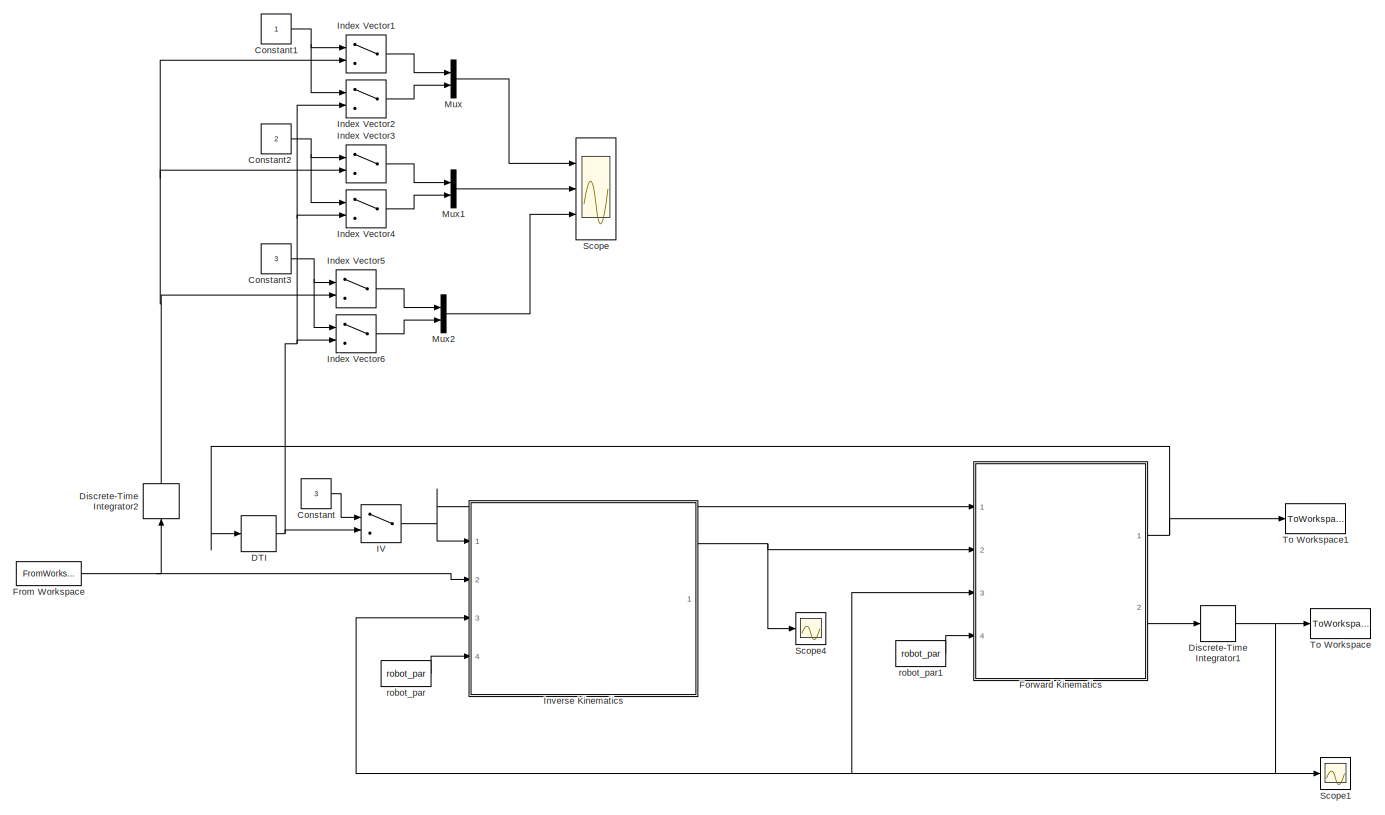
[diagram: root canvas - part 1/1, most of the canvas]
MODEL slx_a0eda91925b4
KIND model
CONFIG AbsTol = auto
CONFIG EnableMultiTasking = off
CONFIG FixedStep = Ts
CONFIG MaxStep = auto
CONFIG MinStep = auto
CONFIG RelTol = 1e-3
CONFIG SampleTimeConstraint = Unconstrained
CONFIG Solver = FixedStepDiscrete
CONFIG SolverName = FixedStepDiscrete
CONFIG StartTime = 0.0
CONFIG StopTime = timesim(end)
BLOCK [Constant] Constant
  Value = 3
BLOCK [Constant] Constant1
BLOCK [Constant] Constant2
  Value = 2
BLOCK [Constant] Constant3
  Value = 3
BLOCK [DiscreteIntegrator] DTI
  ICPrevOutput = DiscIntNeverNeededParam
  ICPrevScaledInput = DiscIntNeverNeededParam
  InitialConditionSetting = State (most efficient)
  Ports = [1, 1]
  SampleTime = Ts
BLOCK [DiscreteIntegrator] Discrete-Time Integrator1
  ICPrevOutput = DiscIntNeverNeededParam
  ICPrevScaledInput = DiscIntNeverNeededParam
  InitialConditionSetting = State (most efficient)
  Ports = [1, 1]
  SampleTime = Ts
BLOCK [DiscreteIntegrator] Discrete-Time Integrator2
  ICPrevOutput = DiscIntNeverNeededParam
  ICPrevScaledInput = DiscIntNeverNeededParam
  InitialConditionSetting = State (most efficient)
  Ports = [1, 1]
  SampleTime = Ts
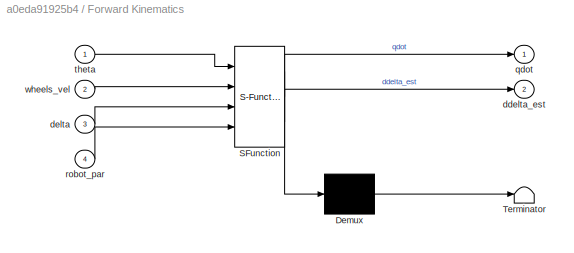
BLOCK [SubSystem] Forward Kinematics
  ErrorFcn = Stateflow.Translate.translate
  PermitHierarchicalResolution = ExplicitOnly
  Ports = [4, 2]
  RequestExecContextInheritance = off
  SFBlockType = MATLAB Function
  TreatAsAtomicUnit = on
  Variant = off
BLOCK [Demux] Forward Kinematics/ Demux 
  Outputs = 1
  Ports = [1, 1]
BLOCK [S-Function] Forward Kinematics/ SFunction 
  EnableBusSupport = on
  FunctionName = sf_sfun
  PortCounts = [4 3]
  Ports = [4, 3]
  SFcnIsStateOwnerBlock = off
  SFunctionDeploymentMode = off
  Tag = Stateflow S-Function ropod_KinModTest 1
BLOCK [Terminator] Forward Kinematics/ Terminator 
BLOCK [Outport] Forward Kinematics/ddelta_est
  IconDisplay = Port number
  Port = 2
BLOCK [Inport] Forward Kinematics/delta
  IconDisplay = Port number
  Port = 3
BLOCK [Outport] Forward Kinematics/qdot
  IconDisplay = Port number
BLOCK [Inport] Forward Kinematics/robot_par
  IconDisplay = Port number
  Port = 4
BLOCK [Inport] Forward Kinematics/theta
  IconDisplay = Port number
BLOCK [Inport] Forward Kinematics/wheels_vel
  IconDisplay = Port number
  Port = 2
BLOCK [FromWorkspace] From Workspace
  SampleTime = 0
  VariableName = qrefdot
  ZeroCross = on
BLOCK [MultiPortSwitch] IV
  InputSameDT = off
  Inputs = 1
  Ports = [2, 1]
  SaturateOnIntegerOverflow = off
BLOCK [MultiPortSwitch] Index Vector1
  InputSameDT = off
  Inputs = 1
  Ports = [2, 1]
  SaturateOnIntegerOverflow = off
BLOCK [MultiPortSwitch] Index Vector2
  InputSameDT = off
  Inputs = 1
  Ports = [2, 1]
  SaturateOnIntegerOverflow = off
BLOCK [MultiPortSwitch] Index Vector3
  InputSameDT = off
  Inputs = 1
  Ports = [2, 1]
  SaturateOnIntegerOverflow = off
BLOCK [MultiPortSwitch] Index Vector4
  InputSameDT = off
  Inputs = 1
  Ports = [2, 1]
  SaturateOnIntegerOverflow = off
BLOCK [MultiPortSwitch] Index Vector5
  InputSameDT = off
  Inputs = 1
  Ports = [2, 1]
  SaturateOnIntegerOverflow = off
BLOCK [MultiPortSwitch] Index Vector6
  InputSameDT = off
  Inputs = 1
  Ports = [2, 1]
  SaturateOnIntegerOverflow = off
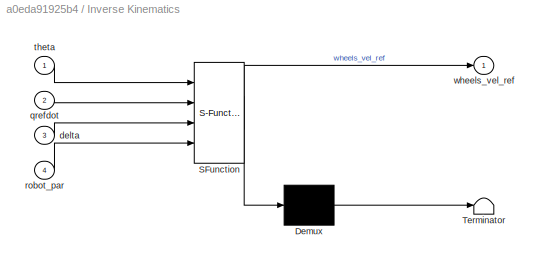
BLOCK [SubSystem] Inverse Kinematics
  ErrorFcn = Stateflow.Translate.translate
  PermitHierarchicalResolution = ExplicitOnly
  Ports = [4, 1]
  RequestExecContextInheritance = off
  SFBlockType = MATLAB Function
  TreatAsAtomicUnit = on
  Variant = off
BLOCK [Demux] Inverse Kinematics/ Demux 
  Outputs = 1
  Ports = [1, 1]
BLOCK [S-Function] Inverse Kinematics/ SFunction 
  EnableBusSupport = on
  FunctionName = sf_sfun
  PortCounts = [4 2]
  Ports = [4, 2]
  SFcnIsStateOwnerBlock = off
  SFunctionDeploymentMode = off
  Tag = Stateflow S-Function ropod_KinModTest 2
BLOCK [Terminator] Inverse Kinematics/ Terminator 
BLOCK [Inport] Inverse Kinematics/delta
  IconDisplay = Port number
  Port = 3
BLOCK [Inport] Inverse Kinematics/qrefdot
  IconDisplay = Port number
  Port = 2
BLOCK [Inport] Inverse Kinematics/robot_par
  IconDisplay = Port number
  Port = 4
BLOCK [Inport] Inverse Kinematics/theta
  IconDisplay = Port number
BLOCK [Outport] Inverse Kinematics/wheels_vel_ref
  IconDisplay = Port number
BLOCK [Mux] Mux
  DisplayOption = bar
  Inputs = 2
  Ports = [2, 1]
BLOCK [Mux] Mux1
  DisplayOption = bar
  Inputs = 2
  Ports = [2, 1]
BLOCK [Mux] Mux2
  DisplayOption = bar
  Inputs = 2
  Ports = [2, 1]
BLOCK [Scope] Scope
  NumInputPorts = 3
  Ports = [3]
  ScopeSpecificationString = Simulink.scopes.TimeScopeBlockCfg('CurrentConfiguration', extmgr.ConfigurationSet(extmgr.Configuration('Core','General UI',true),extmgr.Configuration('Core','Source UI',true),extmgr.Configuration('Sources','WiredSimulink',true),extmgr.Configuration('Visuals','Time Domain',true,'SerializedDisplays',{struct('MinYLimReal','-0.0000000000000000006','MaxYLimReal','0.0000000000000000054','YLabelReal','',...<+2827ch>
BLOCK [Scope] Scope1
  NumInputPorts = 1
  Ports = [1]
  ScopeSpecificationString = Simulink.scopes.TimeScopeBlockCfg('CurrentConfiguration', extmgr.ConfigurationSet(extmgr.Configuration('Core','General UI',true),extmgr.Configuration('Core','Source UI',true),extmgr.Configuration('Sources','WiredSimulink',true,'DataLoggingVariableName','ScopeData1'),extmgr.Configuration('Visuals','Time Domain',true,'SerializedDisplays',{struct('MinYLimReal','-3.92648','MaxYLimReal','3.92661','YLab...<+1432ch>
BLOCK [Scope] Scope4
  NumInputPorts = 1
  Ports = [1]
  ScopeSpecificationString = Simulink.scopes.TimeScopeBlockCfg('CurrentConfiguration', extmgr.ConfigurationSet(extmgr.Configuration('Core','General UI',true),extmgr.Configuration('Core','Source UI',true),extmgr.Configuration('Sources','WiredSimulink',true,'DataLoggingVariableName','ScopeData4'),extmgr.Configuration('Visuals','Time Domain',true,'SerializedDisplays',{struct('MinYLimReal','-37.30877','MaxYLimReal','51.06054','YL...<+1594ch>
BLOCK [ToWorkspace] To Workspace
  FixptAsFi = on
  MaxDataPoints = inf
  Ports = [1]
  SampleTime = -1
  Save2DSignal = 3-D array (concatenate along third dimension)
  SaveFormat = Timeseries
  VariableName = delta_est
BLOCK [ToWorkspace] To Workspace1
  FixptAsFi = on
  MaxDataPoints = inf
  Ports = [1]
  SampleTime = -1
  Save2DSignal = 3-D array (concatenate along third dimension)
  SaveFormat = Timeseries
  VariableName = qdot_est
BLOCK [Constant] robot_par
  Value = robot_par
BLOCK [Constant] robot_par1
  Value = robot_par
NET Constant1:1 -> Index Vector1:1, Index Vector2:1
NET Constant2:1 -> Index Vector3:1, Index Vector4:1
NET Constant3:1 -> Index Vector5:1, Index Vector6:1
LINE Constant:1 -> IV:1
NET DTI:1 -> IV:2, Index Vector2:2, Index Vector4:2, Index Vector6:2
NET Discrete-Time Integrator1:1 -> Forward Kinematics:3, Inverse Kinematics:3, Scope1:1, To Workspace:1
NET Discrete-Time Integrator2:1 -> Index Vector1:2, Index Vector3:2, Index Vector5:2
NET Forward Kinematics:1 -> DTI:1, To Workspace1:1
LINE Forward Kinematics:2 -> Discrete-Time Integrator1:1
NET From Workspace:1 -> Discrete-Time Integrator2:1, Inverse Kinematics:2
NET IV:1 -> Forward Kinematics:1, Inverse Kinematics:1
LINE Index Vector1:1 -> Mux:1
LINE Index Vector2:1 -> Mux:2
LINE Index Vector3:1 -> Mux1:1
LINE Index Vector4:1 -> Mux1:2
LINE Index Vector5:1 -> Mux2:1
LINE Index Vector6:1 -> Mux2:2
NET Inverse Kinematics:1 -> Forward Kinematics:2, Scope4:1
LINE Mux1:1 -> Scope:2
LINE Mux2:1 -> Scope:3
LINE Mux:1 -> Scope:1
LINE robot_par1:1 -> Forward Kinematics:4
LINE robot_par:1 -> Inverse Kinematics:4
note: NET lines group one-source signal fan-out (src -> all destinations, sorted); 1:1 wires keep LINE
CHART Forward Kinematics states=1 transitions=1
  STATE_LABEL 'eML_blk_kernel()'
  STATE_LABEL 'SCRIPT:\nfunction [ qdot, ddelta_est ] = KinMod_ropod( theta, wheels_vel, delta, robot_par)\n% KinMod_8wheelPlatform Summary of this function goes here\n%   Detailed explanation goes here\n%  Input:\n\n%  theta \n%   contains the absolute orientation of teh robot\n%  wheels_vel\n%   velocities from the wheels in rad/sec. See documentation for wheel order\n%  delta \n%   is the measured orientation vector of ...<+1848ch>'
CHART Inverse Kinematics states=1 transitions=1
  STATE_LABEL 'eML_blk_kernel()'
  STATE_LABEL 'SCRIPT:\nfunction wheels_vel_ref  = InvKinMod_ropod( theta, qrefdot, delta, robot_par)\n%InvKinMod_8wheelPlatform \n% With the inverse kinematics, one can determine the needed wheel\n% velocities for certain reference in the inertial frame. \n\n%  Input:\n%  theta \n%   contains the absolute orientation of the robot\n%  qrefdot \n%   contains the reference velocity vector in the inertial frame\n%  delta\n%   ...<+1758ch>'
